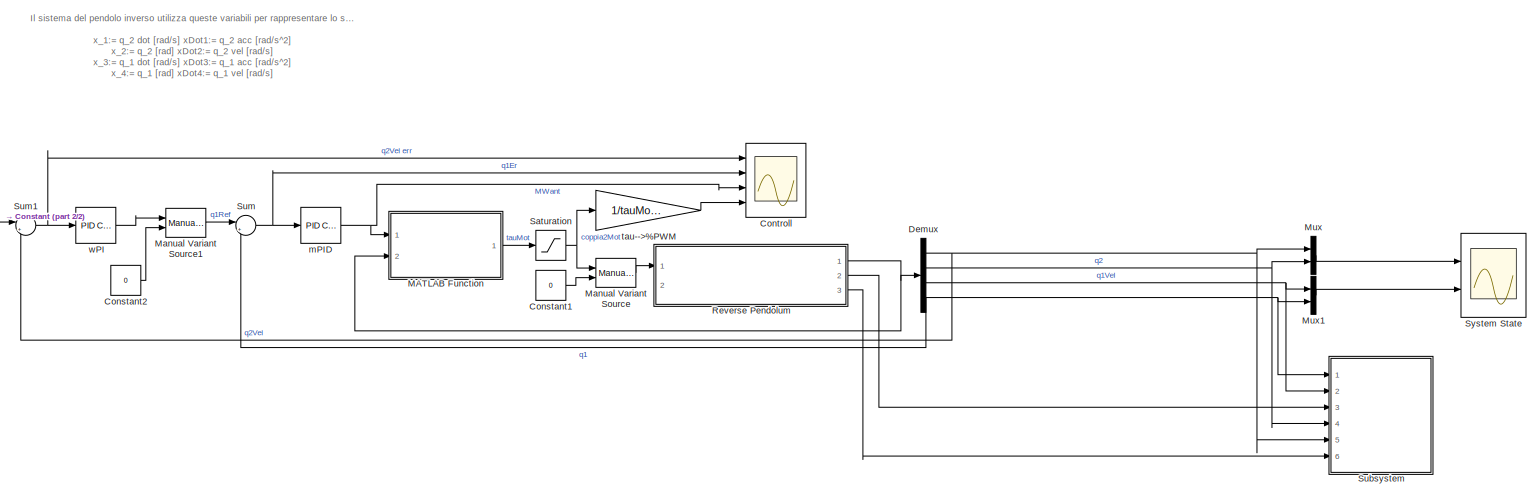
[diagram: root canvas - part 1/2, most of the canvas]
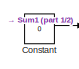
[diagram: root canvas - part 2/2, middle left region]
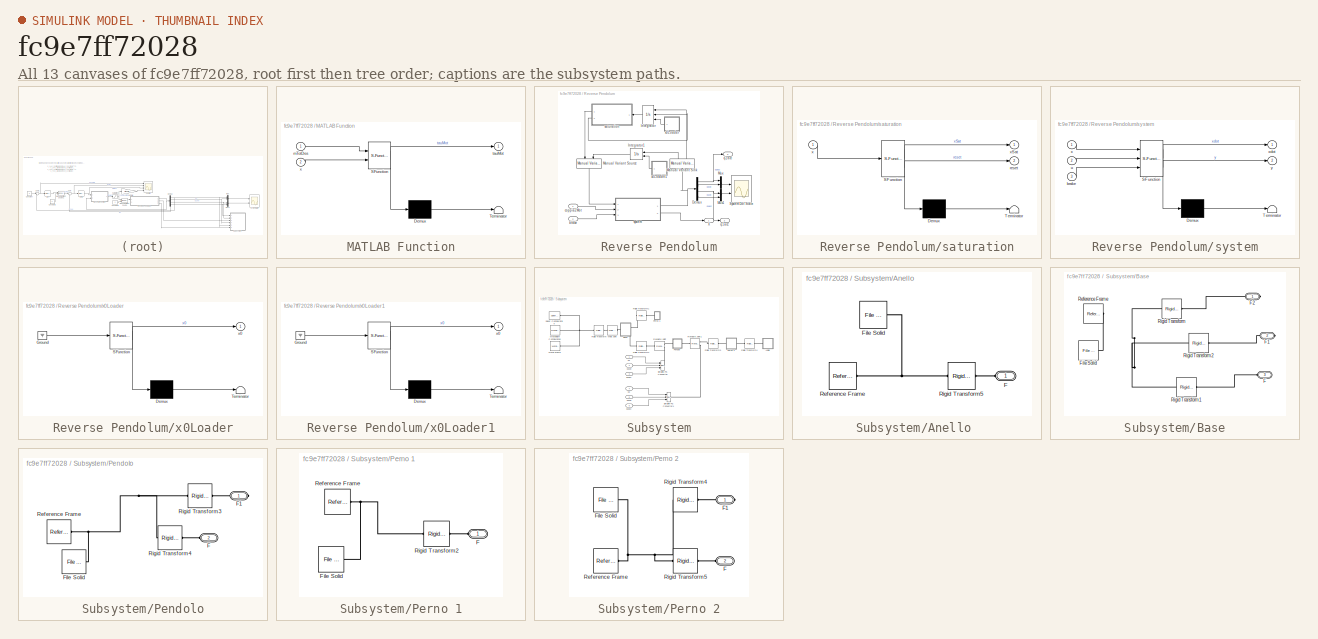
[diagram: thumbnail index - all 13 canvases of the model, root first then tree order]
MODEL slx_fc9e7ff72028
KIND model
CONFIG AbsTol = auto
CONFIG EnableMultiTasking = off
CONFIG FixedStep = 0.0001
CONFIG InitFcn = simulationVar
CONFIG MaxStep = auto
CONFIG MinStep = auto
CONFIG RelTol = 1e-4
CONFIG SampleTimeConstraint = Unconstrained
CONFIG Solver = VariableStepAuto
CONFIG SolverName = VariableStepAuto
CONFIG StartTime = 0.0
CONFIG StopTime = 60
BLOCK [Constant] Constant
  Value = 0
BLOCK [Constant] Constant1
  Value = 0
BLOCK [Constant] Constant2
  Value = 0
BLOCK [Scope] Controll
  Floating = off
  NumInputPorts = 4
  Ports = [4]
  ScopeSpecificationString = Simulink.scopes.TimeScopeBlockCfg('CurrentConfiguration', extmgr.ConfigurationSet(extmgr.Configuration('Core','General UI',true),extmgr.Configuration('Core','Source UI',true),extmgr.Configuration('Sources','WiredSimulink',true,'DataLoggingVariableName','ScopeData1'),extmgr.Configuration('Visuals','Time Domain',true,'SerializedDisplays',{struct('MinYLimReal','-571.95613','MaxYLimReal','265.83464','...<+3625ch>
BLOCK [Demux] Demux
  DisplayOption = bar
  Ports = [1, 4]
BLOCK [SubSystem] MATLAB Function
  ErrorFcn = Stateflow.Translate.translate
  PermitHierarchicalResolution = ExplicitOnly
  Ports = [2, 1]
  RequestExecContextInheritance = off
  SFBlockType = MATLAB Function
  TreatAsAtomicUnit = on
BLOCK [Demux] MATLAB Function/ Demux 
  Outputs = 1
  Ports = [1, 1]
BLOCK [S-Function] MATLAB Function/ SFunction 
  EnableBusSupport = on
  FunctionName = sf_sfun
  PortCounts = [2 2]
  Ports = [2, 2]
  SFcnIsStateOwnerBlock = off
  SFunctionDeploymentMode = off
  Tag = Stateflow S-Function 5
BLOCK [Terminator] MATLAB Function/ Terminator 
BLOCK [Inport] MATLAB Function/mTotDes
  IconDisplay = Port number
BLOCK [Outport] MATLAB Function/tauMot
  IconDisplay = Port number
  VectorParamsAs1DForOutWhenUnconnected = off
BLOCK [Inport] MATLAB Function/x
  IconDisplay = Port number
  Port = 2
BLOCK [Reference] Manual Variant Source  REF=simulink/Signal
Routing/Manual
Variant Source
  Ports = [2, 1]
  SourceBlock = simulink/Signal\nRouting/Manual\nVariant Source
  SourceProductBaseCode = SL
  SourceProductName = Simulink
  SourceType = ManualVariantSource
BLOCK [Reference] Manual Variant Source1  REF=simulink/Signal
Routing/Manual
Variant Source
  Ports = [2, 1]
  SourceBlock = simulink/Signal\nRouting/Manual\nVariant Source
  SourceProductBaseCode = SL
  SourceProductName = Simulink
  SourceType = ManualVariantSource
BLOCK [Mux] Mux
  DisplayOption = bar
  Inputs = 2
  Ports = [2, 1]
BLOCK [Mux] Mux1
  DisplayOption = bar
  Inputs = 2
  Ports = [2, 1]
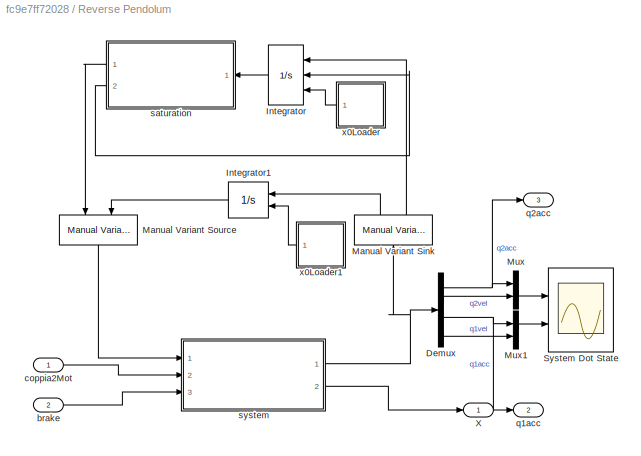
BLOCK [SubSystem] Reverse Pendolum
  Ports = [2, 3]
  RequestExecContextInheritance = off
BLOCK [Demux] Reverse Pendolum/Demux
  DisplayOption = bar
  Ports = [1, 4]
BLOCK [Integrator] Reverse Pendolum/Integrator
  ExternalReset = rising
  InitialCondition = [0,0.1,0]
  InitialConditionSource = external
  Ports = [3, 1]
BLOCK [Integrator] Reverse Pendolum/Integrator1
  InitialConditionSource = external
  Ports = [2, 1]
BLOCK [Reference] Reverse Pendolum/Manual Variant Sink  REF=simulink/Signal
Routing/Manual
Variant Sink
  Ports = [1, 2]
  SourceBlock = simulink/Signal\nRouting/Manual\nVariant Sink
  SourceProductBaseCode = SL
  SourceProductName = Simulink
  SourceType = ManualVariantSink
BLOCK [Reference] Reverse Pendolum/Manual Variant Source  REF=simulink/Signal
Routing/Manual
Variant Source
  Ports = [2, 1]
  SourceBlock = simulink/Signal\nRouting/Manual\nVariant Source
  SourceProductBaseCode = SL
  SourceProductName = Simulink
  SourceType = ManualVariantSource
BLOCK [Mux] Reverse Pendolum/Mux
  DisplayOption = bar
  Inputs = 2
  Ports = [2, 1]
BLOCK [Mux] Reverse Pendolum/Mux1
  DisplayOption = bar
  Inputs = 2
  Ports = [2, 1]
BLOCK [Scope] Reverse Pendolum/System Dot State
  Floating = off
  NumInputPorts = 2
  Ports = [2]
  ScopeSpecificationString = Simulink.scopes.TimeScopeBlockCfg('CurrentConfiguration', extmgr.ConfigurationSet(extmgr.Configuration('Core','General UI',true),extmgr.Configuration('Core','Source UI',true),extmgr.Configuration('Sources','WiredSimulink',true,'DataLoggingVariableName','ScopeData2'),extmgr.Configuration('Visuals','Time Domain',true,'SerializedDisplays',{struct('MinYLimReal','-12277.57606','MaxYLimReal','11488.9348...<+2165ch>
BLOCK [Outport] Reverse Pendolum/X
  IconDisplay = Port number
  VectorParamsAs1DForOutWhenUnconnected = off
BLOCK [Inport] Reverse Pendolum/brake
  IconDisplay = Port number
  Port = 2
BLOCK [Inport] Reverse Pendolum/coppia2Mot
  IconDisplay = Port number
BLOCK [Outport] Reverse Pendolum/q1acc
  IconDisplay = Port number
  Port = 2
  VectorParamsAs1DForOutWhenUnconnected = off
BLOCK [Outport] Reverse Pendolum/q2acc
  IconDisplay = Port number
  Port = 3
  VectorParamsAs1DForOutWhenUnconnected = off
BLOCK [SubSystem] Reverse Pendolum/saturation
  ErrorFcn = Stateflow.Translate.translate
  PermitHierarchicalResolution = ExplicitOnly
  Ports = [1, 2]
  RequestExecContextInheritance = off
  SFBlockType = MATLAB Function
  TreatAsAtomicUnit = on
BLOCK [Demux] Reverse Pendolum/saturation/ Demux 
  Outputs = 1
  Ports = [1, 1]
BLOCK [S-Function] Reverse Pendolum/saturation/ SFunction 
  EnableBusSupport = on
  FunctionName = sf_sfun
  PortCounts = [1 3]
  Ports = [1, 3]
  SFcnIsStateOwnerBlock = off
  SFunctionDeploymentMode = off
  Tag = Stateflow S-Function 2
BLOCK [Terminator] Reverse Pendolum/saturation/ Terminator 
BLOCK [Outport] Reverse Pendolum/saturation/reset
  IconDisplay = Port number
  Port = 2
  VectorParamsAs1DForOutWhenUnconnected = off
BLOCK [Inport] Reverse Pendolum/saturation/x
  IconDisplay = Port number
BLOCK [Outport] Reverse Pendolum/saturation/xSat
  IconDisplay = Port number
  VectorParamsAs1DForOutWhenUnconnected = off
BLOCK [SubSystem] Reverse Pendolum/system
  ErrorFcn = Stateflow.Translate.translate
  PermitHierarchicalResolution = ExplicitOnly
  Ports = [3, 2]
  RequestExecContextInheritance = off
  SFBlockType = MATLAB Function
  TreatAsAtomicUnit = on
BLOCK [Demux] Reverse Pendolum/system/ Demux 
  Outputs = 1
  Ports = [1, 1]
BLOCK [S-Function] Reverse Pendolum/system/ SFunction 
  EnableBusSupport = on
  FunctionName = sf_sfun
  PortCounts = [3 3]
  Ports = [3, 3]
  SFcnIsStateOwnerBlock = off
  SFunctionDeploymentMode = off
  Tag = Stateflow S-Function 1
BLOCK [Terminator] Reverse Pendolum/system/ Terminator 
BLOCK [Inport] Reverse Pendolum/system/brake
  IconDisplay = Port number
  Port = 3
BLOCK [Inport] Reverse Pendolum/system/u
  IconDisplay = Port number
  Port = 2
BLOCK [Inport] Reverse Pendolum/system/x
  IconDisplay = Port number
BLOCK [Outport] Reverse Pendolum/system/xdot
  IconDisplay = Port number
  VectorParamsAs1DForOutWhenUnconnected = off
BLOCK [Outport] Reverse Pendolum/system/y
  IconDisplay = Port number
  Port = 2
  VectorParamsAs1DForOutWhenUnconnected = off
BLOCK [SubSystem] Reverse Pendolum/x0Loader
  ErrorFcn = Stateflow.Translate.translate
  PermitHierarchicalResolution = ExplicitOnly
  Ports = [0, 1]
  RequestExecContextInheritance = off
  SFBlockType = MATLAB Function
  TreatAsAtomicUnit = on
BLOCK [Demux] Reverse Pendolum/x0Loader/ Demux 
  Outputs = 1
  Ports = [1, 1]
BLOCK [Ground] Reverse Pendolum/x0Loader/ Ground 
BLOCK [S-Function] Reverse Pendolum/x0Loader/ SFunction 
  EnableBusSupport = on
  FunctionName = sf_sfun
  PortCounts = [1 2]
  Ports = [1, 2]
  SFcnIsStateOwnerBlock = off
  SFunctionDeploymentMode = off
  Tag = Stateflow S-Function 3
BLOCK [Terminator] Reverse Pendolum/x0Loader/ Terminator 
BLOCK [Outport] Reverse Pendolum/x0Loader/x0
  IconDisplay = Port number
  VectorParamsAs1DForOutWhenUnconnected = off
BLOCK [SubSystem] Reverse Pendolum/x0Loader1
  ErrorFcn = Stateflow.Translate.translate
  PermitHierarchicalResolution = ExplicitOnly
  Ports = [0, 1]
  RequestExecContextInheritance = off
  SFBlockType = MATLAB Function
  TreatAsAtomicUnit = on
BLOCK [Demux] Reverse Pendolum/x0Loader1/ Demux 
  Outputs = 1
  Ports = [1, 1]
BLOCK [Ground] Reverse Pendolum/x0Loader1/ Ground 
BLOCK [S-Function] Reverse Pendolum/x0Loader1/ SFunction 
  EnableBusSupport = on
  FunctionName = sf_sfun
  PortCounts = [1 2]
  Ports = [1, 2]
  SFcnIsStateOwnerBlock = off
  SFunctionDeploymentMode = off
  Tag = Stateflow S-Function 4
BLOCK [Terminator] Reverse Pendolum/x0Loader1/ Terminator 
BLOCK [Outport] Reverse Pendolum/x0Loader1/x0
  IconDisplay = Port number
  VectorParamsAs1DForOutWhenUnconnected = off
BLOCK [Saturate] Saturation
  InputPortMap = u0
  LowerLimit = -tauMotMax
  Ports = [1, 1]
  UpperLimit = tauMotMax
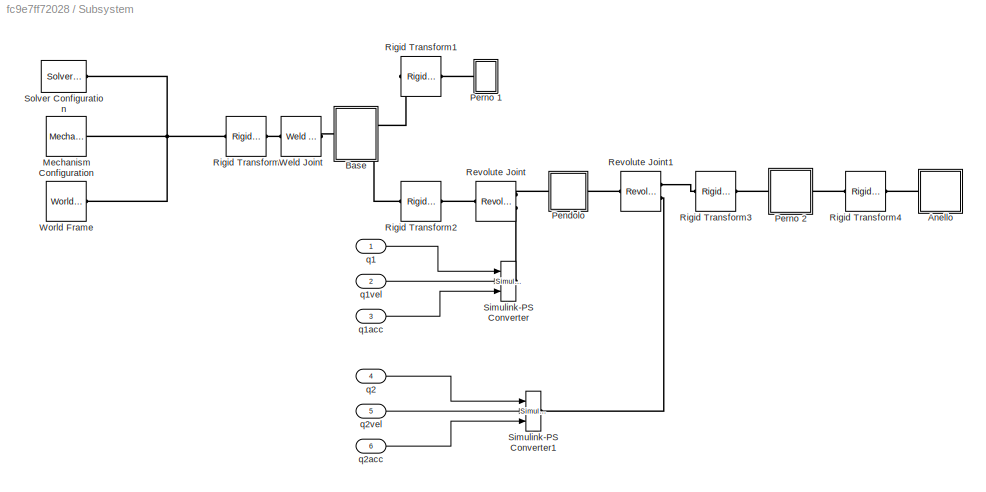
BLOCK [SubSystem] Subsystem
  Ports = [6]
  RequestExecContextInheritance = off
BLOCK [SubSystem] Subsystem/Anello 
  Ports = [0, 0, 0, 0, 0, 1]
  RequestExecContextInheritance = off
BLOCK [PMIOPort] Subsystem/Anello /F
  Side = Left
BLOCK [Reference] Subsystem/Anello /File Solid  REF=sm_lib/Body Elements/File Solid
  Ports = [0, 0, 0, 0, 0, 0, 1]
  SourceBlock = sm_lib/Body Elements/File Solid
  SourceProductBaseCode = MS
  SourceProductName = Simscape Multibody
  SourceType = File Solid
BLOCK [Reference] Subsystem/Anello /Reference Frame  REF=sm_lib/Frames and
Transforms/Reference
Frame
  Ports = [0, 0, 0, 0, 0, 0, 1]
  SourceBlock = sm_lib/Frames and\nTransforms/Reference\nFrame
  SourceProductBaseCode = MS
  SourceProductName = Simscape Multibody
  SourceType = Reference\nFrame
BLOCK [Reference] Subsystem/Anello /Rigid Transform5  REF=sm_lib/Frames and
Transforms/Rigid
Transform
  Ports = [0, 0, 0, 0, 0, 1, 1]
  SourceBlock = sm_lib/Frames and\nTransforms/Rigid\nTransform
  SourceProductBaseCode = MS
  SourceProductName = Simscape Multibody
  SourceType = Rigid\nTransform
BLOCK [SubSystem] Subsystem/Base
  Ports = [0, 0, 0, 0, 0, 1, 2]
  RequestExecContextInheritance = off
BLOCK [PMIOPort] Subsystem/Base/F
  Port = 3
  Side = Left
BLOCK [PMIOPort] Subsystem/Base/F1
  Port = 2
  Side = Right
BLOCK [PMIOPort] Subsystem/Base/F2
  Side = Right
BLOCK [Reference] Subsystem/Base/File Solid  REF=sm_lib/Body Elements/File Solid
  Ports = [0, 0, 0, 0, 0, 0, 1]
  SourceBlock = sm_lib/Body Elements/File Solid
  SourceProductBaseCode = MS
  SourceProductName = Simscape Multibody
  SourceType = File Solid
BLOCK [Reference] Subsystem/Base/Reference Frame  REF=sm_lib/Frames and
Transforms/Reference
Frame
  Ports = [0, 0, 0, 0, 0, 0, 1]
  SourceBlock = sm_lib/Frames and\nTransforms/Reference\nFrame
  SourceProductBaseCode = MS
  SourceProductName = Simscape Multibody
  SourceType = Reference\nFrame
BLOCK [Reference] Subsystem/Base/Rigid Transform  REF=sm_lib/Frames and
Transforms/Rigid
Transform
  Ports = [0, 0, 0, 0, 0, 1, 1]
  SourceBlock = sm_lib/Frames and\nTransforms/Rigid\nTransform
  SourceProductBaseCode = MS
  SourceProductName = Simscape Multibody
  SourceType = Rigid\nTransform
BLOCK [Reference] Subsystem/Base/Rigid Transform1  REF=sm_lib/Frames and
Transforms/Rigid
Transform
  Ports = [0, 0, 0, 0, 0, 1, 1]
  SourceBlock = sm_lib/Frames and\nTransforms/Rigid\nTransform
  SourceProductBaseCode = MS
  SourceProductName = Simscape Multibody
  SourceType = Rigid\nTransform
BLOCK [Reference] Subsystem/Base/Rigid Transform2  REF=sm_lib/Frames and
Transforms/Rigid
Transform
  Ports = [0, 0, 0, 0, 0, 1, 1]
  SourceBlock = sm_lib/Frames and\nTransforms/Rigid\nTransform
  SourceProductBaseCode = MS
  SourceProductName = Simscape Multibody
  SourceType = Rigid\nTransform
BLOCK [Reference] Subsystem/Mechanism Configuration  REF=sm_lib/Utilities/Mechanism
Configuration
  Ports = [0, 0, 0, 0, 0, 0, 1]
  SourceBlock = sm_lib/Utilities/Mechanism\nConfiguration
  SourceProductBaseCode = MS
  SourceProductName = Simscape Multibody
  SourceType = Mechanism\nConfiguration
BLOCK [SubSystem] Subsystem/Pendolo
  Ports = [0, 0, 0, 0, 0, 1, 1]
  RequestExecContextInheritance = off
BLOCK [PMIOPort] Subsystem/Pendolo/F 
  Port = 2
  Side = Left
BLOCK [PMIOPort] Subsystem/Pendolo/F1
  Side = Right
BLOCK [Reference] Subsystem/Pendolo/File Solid  REF=sm_lib/Body Elements/File Solid
  Ports = [0, 0, 0, 0, 0, 0, 1]
  SourceBlock = sm_lib/Body Elements/File Solid
  SourceProductBaseCode = MS
  SourceProductName = Simscape Multibody
  SourceType = File Solid
BLOCK [Reference] Subsystem/Pendolo/Reference Frame  REF=sm_lib/Frames and
Transforms/Reference
Frame
  Ports = [0, 0, 0, 0, 0, 0, 1]
  SourceBlock = sm_lib/Frames and\nTransforms/Reference\nFrame
  SourceProductBaseCode = MS
  SourceProductName = Simscape Multibody
  SourceType = Reference\nFrame
BLOCK [Reference] Subsystem/Pendolo/Rigid Transform3  REF=sm_lib/Frames and
Transforms/Rigid
Transform
  Ports = [0, 0, 0, 0, 0, 1, 1]
  SourceBlock = sm_lib/Frames and\nTransforms/Rigid\nTransform
  SourceProductBaseCode = MS
  SourceProductName = Simscape Multibody
  SourceType = Rigid\nTransform
BLOCK [Reference] Subsystem/Pendolo/Rigid Transform4  REF=sm_lib/Frames and
Transforms/Rigid
Transform
  Ports = [0, 0, 0, 0, 0, 1, 1]
  SourceBlock = sm_lib/Frames and\nTransforms/Rigid\nTransform
  SourceProductBaseCode = MS
  SourceProductName = Simscape Multibody
  SourceType = Rigid\nTransform
BLOCK [SubSystem] Subsystem/Perno 1
  Ports = [0, 0, 0, 0, 0, 1]
  RequestExecContextInheritance = off
BLOCK [PMIOPort] Subsystem/Perno 1/F
  Side = Left
BLOCK [Reference] Subsystem/Perno 1/File Solid  REF=sm_lib/Body Elements/File Solid
  Ports = [0, 0, 0, 0, 0, 0, 1]
  SourceBlock = sm_lib/Body Elements/File Solid
  SourceProductBaseCode = MS
  SourceProductName = Simscape Multibody
  SourceType = File Solid
BLOCK [Reference] Subsystem/Perno 1/Reference Frame  REF=sm_lib/Frames and
Transforms/Reference
Frame
  Ports = [0, 0, 0, 0, 0, 0, 1]
  SourceBlock = sm_lib/Frames and\nTransforms/Reference\nFrame
  SourceProductBaseCode = MS
  SourceProductName = Simscape Multibody
  SourceType = Reference\nFrame
BLOCK [Reference] Subsystem/Perno 1/Rigid Transform2  REF=sm_lib/Frames and
Transforms/Rigid
Transform
  Ports = [0, 0, 0, 0, 0, 1, 1]
  SourceBlock = sm_lib/Frames and\nTransforms/Rigid\nTransform
  SourceProductBaseCode = MS
  SourceProductName = Simscape Multibody
  SourceType = Rigid\nTransform
BLOCK [SubSystem] Subsystem/Perno 2
  Ports = [0, 0, 0, 0, 0, 1, 1]
  RequestExecContextInheritance = off
BLOCK [PMIOPort] Subsystem/Perno 2/F
  Port = 2
  Side = Left
BLOCK [PMIOPort] Subsystem/Perno 2/F1
  Side = Right
BLOCK [Reference] Subsystem/Perno 2/File Solid  REF=sm_lib/Body Elements/File Solid
  Ports = [0, 0, 0, 0, 0, 0, 1]
  SourceBlock = sm_lib/Body Elements/File Solid
  SourceProductBaseCode = MS
  SourceProductName = Simscape Multibody
  SourceType = File Solid
BLOCK [Reference] Subsystem/Perno 2/Reference Frame  REF=sm_lib/Frames and
Transforms/Reference
Frame
  Ports = [0, 0, 0, 0, 0, 0, 1]
  SourceBlock = sm_lib/Frames and\nTransforms/Reference\nFrame
  SourceProductBaseCode = MS
  SourceProductName = Simscape Multibody
  SourceType = Reference\nFrame
BLOCK [Reference] Subsystem/Perno 2/Rigid Transform4  REF=sm_lib/Frames and
Transforms/Rigid
Transform
  Ports = [0, 0, 0, 0, 0, 1, 1]
  SourceBlock = sm_lib/Frames and\nTransforms/Rigid\nTransform
  SourceProductBaseCode = MS
  SourceProductName = Simscape Multibody
  SourceType = Rigid\nTransform
BLOCK [Reference] Subsystem/Perno 2/Rigid Transform5  REF=sm_lib/Frames and
Transforms/Rigid
Transform
  Ports = [0, 0, 0, 0, 0, 1, 1]
  SourceBlock = sm_lib/Frames and\nTransforms/Rigid\nTransform
  SourceProductBaseCode = MS
  SourceProductName = Simscape Multibody
  SourceType = Rigid\nTransform
BLOCK [Reference] Subsystem/Revolute Joint  REF=sm_lib/Joints/Revolute Joint
  Ports = [0, 0, 0, 0, 0, 2, 1]
  SourceBlock = sm_lib/Joints/Revolute Joint
  SourceProductBaseCode = MS
  SourceProductName = Simscape Multibody
  SourceType = Revolute Joint
BLOCK [Reference] Subsystem/Revolute Joint1  REF=sm_lib/Joints/Revolute Joint
  Ports = [0, 0, 0, 0, 0, 2, 1]
  SourceBlock = sm_lib/Joints/Revolute Joint
  SourceProductBaseCode = MS
  SourceProductName = Simscape Multibody
  SourceType = Revolute Joint
BLOCK [Reference] Subsystem/Rigid Transform  REF=sm_lib/Frames and
Transforms/Rigid
Transform
  Ports = [0, 0, 0, 0, 0, 1, 1]
  SourceBlock = sm_lib/Frames and\nTransforms/Rigid\nTransform
  SourceProductBaseCode = MS
  SourceProductName = Simscape Multibody
  SourceType = Rigid\nTransform
BLOCK [Reference] Subsystem/Rigid Transform1  REF=sm_lib/Frames and
Transforms/Rigid
Transform
  Ports = [0, 0, 0, 0, 0, 1, 1]
  SourceBlock = sm_lib/Frames and\nTransforms/Rigid\nTransform
  SourceProductBaseCode = MS
  SourceProductName = Simscape Multibody
  SourceType = Rigid\nTransform
BLOCK [Reference] Subsystem/Rigid Transform2  REF=sm_lib/Frames and
Transforms/Rigid
Transform
  Ports = [0, 0, 0, 0, 0, 1, 1]
  SourceBlock = sm_lib/Frames and\nTransforms/Rigid\nTransform
  SourceProductBaseCode = MS
  SourceProductName = Simscape Multibody
  SourceType = Rigid\nTransform
BLOCK [Reference] Subsystem/Rigid Transform3  REF=sm_lib/Frames and
Transforms/Rigid
Transform
  Ports = [0, 0, 0, 0, 0, 1, 1]
  SourceBlock = sm_lib/Frames and\nTransforms/Rigid\nTransform
  SourceProductBaseCode = MS
  SourceProductName = Simscape Multibody
  SourceType = Rigid\nTransform
BLOCK [Reference] Subsystem/Rigid Transform4  REF=sm_lib/Frames and
Transforms/Rigid
Transform
  Ports = [0, 0, 0, 0, 0, 1, 1]
  SourceBlock = sm_lib/Frames and\nTransforms/Rigid\nTransform
  SourceProductBaseCode = MS
  SourceProductName = Simscape Multibody
  SourceType = Rigid\nTransform
BLOCK [Reference] Subsystem/Simulink-PS Converter  REF=nesl_utility/Simulink-PS
Converter
  Ports = [3, 0, 0, 0, 0, 0, 1]
  SourceBlock = nesl_utility/Simulink-PS\nConverter
  SourceProductBaseCode = SS
  SourceProductName = Simscape
  SourceType = Simulink-PS\nConverter
BLOCK [Reference] Subsystem/Simulink-PS Converter1  REF=nesl_utility/Simulink-PS
Converter
  Ports = [3, 0, 0, 0, 0, 0, 1]
  SourceBlock = nesl_utility/Simulink-PS\nConverter
  SourceProductBaseCode = SS
  SourceProductName = Simscape
  SourceType = Simulink-PS\nConverter
BLOCK [Reference] Subsystem/Solver Configuration  REF=nesl_utility/Solver
Configuration
  Ports = [0, 0, 0, 0, 0, 0, 1]
  SourceBlock = nesl_utility/Solver\nConfiguration
  SourceProductBaseCode = SS
  SourceProductName = Simscape
  SourceType = Solver\nConfiguration
BLOCK [Reference] Subsystem/Weld Joint  REF=sm_lib/Joints/Weld Joint
  Ports = [0, 0, 0, 0, 0, 1, 1]
  SourceBlock = sm_lib/Joints/Weld Joint
  SourceProductBaseCode = MS
  SourceProductName = Simscape Multibody
  SourceType = Weld Joint
BLOCK [Reference] Subsystem/World Frame  REF=sm_lib/Frames and
Transforms/World Frame
  Ports = [0, 0, 0, 0, 0, 0, 1]
  SourceBlock = sm_lib/Frames and\nTransforms/World Frame
  SourceProductBaseCode = MS
  SourceProductName = Simscape Multibody
  SourceType = World Frame
BLOCK [Inport] Subsystem/q1
  IconDisplay = Port number
BLOCK [Inport] Subsystem/q1acc
  IconDisplay = Port number
  Port = 3
BLOCK [Inport] Subsystem/q1vel
  IconDisplay = Port number
  Port = 2
BLOCK [Inport] Subsystem/q2
  IconDisplay = Port number
  Port = 4
BLOCK [Inport] Subsystem/q2acc
  IconDisplay = Port number
  Port = 6
BLOCK [Inport] Subsystem/q2vel
  IconDisplay = Port number
  Port = 5
BLOCK [Sum] Sum
  IconShape = round
  InputSameDT = off
  Inputs = |+-
  OutDataTypeStr = Inherit: Inherit via internal rule
  Ports = [2, 1]
  SaturateOnIntegerOverflow = off
BLOCK [Sum] Sum1
  IconShape = round
  InputSameDT = off
  Inputs = |+-
  OutDataTypeStr = Inherit: Inherit via internal rule
  Ports = [2, 1]
  SaturateOnIntegerOverflow = off
BLOCK [Scope] System State
  Floating = off
  NumInputPorts = 2
  Ports = [2]
  ScopeSpecificationString = Simulink.scopes.TimeScopeBlockCfg('CurrentConfiguration', extmgr.ConfigurationSet(extmgr.Configuration('Core','General UI',true),extmgr.Configuration('Core','Source UI',true),extmgr.Configuration('Sources','WiredSimulink',true),extmgr.Configuration('Visuals','Time Domain',true,'SerializedDisplays',{struct('MinYLimReal','-16752.25387','MaxYLimReal','5954.39759','YLabelReal','','MinYLimMag','   0.00...<+2190ch>
BLOCK [Reference] mPID  REF=simulink/Continuous/PID Controller
  Ports = [1, 1]
  SourceBlock = simulink/Continuous/PID Controller
  SourceProductBaseCode = SL
  SourceProductName = Simulink
  SourceType = PID 1dof
BLOCK [Gain] tau-->%PWM
  Gain = 1/tauMotMax
  OutDataTypeStr = Inherit: Inherit via internal rule
  ParamDataTypeStr = Inherit: Inherit via internal rule
  SaturateOnIntegerOverflow = off
BLOCK [Reference] wPI  REF=simulink/Continuous/PID Controller
  Ports = [1, 1]
  SourceBlock = simulink/Continuous/PID Controller
  SourceProductBaseCode = SL
  SourceProductName = Simulink
  SourceType = PID 1dof
ANNOTATION (root): Il sistema del pendolo inverso utilizza queste variabili per rappresentare lo stato del sistema: x_1:= q_2 dot [rad/s] xDot1:= q_2 acc [rad/s^2] x_2:= q_2 [rad] xDot2:= q_2 vel [rad/s] x_3:= q_1 dot [rad/s] xDot3:= q_1 acc [rad/s^2] x_4:= q_1 [rad] xDot4:= q_1 vel [rad/s] Dentro il file "simulationVar.m" è possibile impostare i valori numerici delle costanti che danno vita alla simulazione
LINE Constant1:1 -> Manual Variant Source:2
LINE Constant2:1 -> Manual Variant Source1:2
LINE Constant:1 -> Sum1:1
NET Demux:1 -> Mux:1, Subsystem:5, Sum1:2
NET Demux:2 -> Mux:2, Subsystem:4
NET Demux:3 -> Mux1:1, Subsystem:2
NET Demux:4 -> Mux1:2, Subsystem:1, Sum:2
LINE MATLAB Function:1 -> Saturation:1
LINE Manual Variant Source1:1 -> Sum:1
LINE Manual Variant Source:1 -> Reverse Pendolum:1
LINE Mux1:1 -> System State:2
LINE Mux:1 -> System State:1
NET Reverse Pendolum/Demux:1 -> Reverse Pendolum/Mux:1, Reverse Pendolum/q2acc:1
LINE Reverse Pendolum/Demux:2 -> Reverse Pendolum/Mux:2
NET Reverse Pendolum/Demux:3 -> Reverse Pendolum/Mux1:1, Reverse Pendolum/q1acc:1
LINE Reverse Pendolum/Demux:4 -> Reverse Pendolum/Mux1:2
LINE Reverse Pendolum/Integrator1:1 -> Reverse Pendolum/Manual Variant Source:2
LINE Reverse Pendolum/Integrator:1 -> Reverse Pendolum/saturation:1
LINE Reverse Pendolum/Manual Variant Sink:1 -> Reverse Pendolum/Integrator1:1
LINE Reverse Pendolum/Manual Variant Sink:2 -> Reverse Pendolum/Integrator:1
LINE Reverse Pendolum/Manual Variant Source:1 -> Reverse Pendolum/system:1
LINE Reverse Pendolum/Mux1:1 -> Reverse Pendolum/System Dot State:2
LINE Reverse Pendolum/Mux:1 -> Reverse Pendolum/System Dot State:1
LINE Reverse Pendolum/brake:1 -> Reverse Pendolum/system:3
LINE Reverse Pendolum/coppia2Mot:1 -> Reverse Pendolum/system:2
LINE Reverse Pendolum/saturation:1 -> Reverse Pendolum/Manual Variant Source:1
LINE Reverse Pendolum/saturation:2 -> Reverse Pendolum/Integrator:2
NET Reverse Pendolum/system:1 -> Reverse Pendolum/Demux:1, Reverse Pendolum/Manual Variant Sink:1
LINE Reverse Pendolum/system:2 -> Reverse Pendolum/X:1
LINE Reverse Pendolum/x0Loader1:1 -> Reverse Pendolum/Integrator1:2
LINE Reverse Pendolum/x0Loader:1 -> Reverse Pendolum/Integrator:3
NET Reverse Pendolum:1 -> Demux:1, MATLAB Function:2
LINE Reverse Pendolum:2 -> Subsystem:3
LINE Reverse Pendolum:3 -> Subsystem:6
NET Saturation:1 -> Manual Variant Source:1, tau-->%PWM:1
LINE Subsystem/q1:1 -> Subsystem/Simulink-PS Converter:1
LINE Subsystem/q1acc:1 -> Subsystem/Simulink-PS Converter:3
LINE Subsystem/q1vel:1 -> Subsystem/Simulink-PS Converter:2
LINE Subsystem/q2:1 -> Subsystem/Simulink-PS Converter1:1
LINE Subsystem/q2acc:1 -> Subsystem/Simulink-PS Converter1:3
LINE Subsystem/q2vel:1 -> Subsystem/Simulink-PS Converter1:2
NET Sum1:1 -> Controll:1, wPI:1
NET Sum:1 -> Controll:2, mPID:1
NET mPID:1 -> Controll:3, MATLAB Function:1
LINE tau-->%PWM:1 -> Controll:4
LINE wPI:1 -> Manual Variant Source1:1
PLINE Subsystem/Anello /F:RConn1 -- Subsystem/Anello /Rigid Transform5:RConn1
PNET net1: Subsystem/Anello /File Solid:RConn1 -- Subsystem/Anello /Reference Frame:RConn1 -- Subsystem/Anello /Rigid Transform5:LConn1
PLINE Subsystem/Anello :LConn1 -- Subsystem/Rigid Transform4:RConn1
PLINE Subsystem/Base/F1:RConn1 -- Subsystem/Base/Rigid Transform2:RConn1
PLINE Subsystem/Base/F2:RConn1 -- Subsystem/Base/Rigid Transform:RConn1
PLINE Subsystem/Base/F:RConn1 -- Subsystem/Base/Rigid Transform1:RConn1
PNET net2: Subsystem/Base/File Solid:RConn1 -- Subsystem/Base/Reference Frame:RConn1 -- Subsystem/Base/Rigid Transform1:LConn1 -- Subsystem/Base/Rigid Transform2:LConn1 -- Subsystem/Base/Rigid Transform:LConn1
PLINE Subsystem/Base:LConn1 -- Subsystem/Weld Joint:RConn1
PLINE Subsystem/Base:RConn1 -- Subsystem/Rigid Transform1:LConn1
PLINE Subsystem/Base:RConn2 -- Subsystem/Rigid Transform2:LConn1
PNET net3: Subsystem/Mechanism Configuration:RConn1 -- Subsystem/Rigid Transform:LConn1 -- Subsystem/Solver Configuration:RConn1 -- Subsystem/World Frame:RConn1
PLINE Subsystem/Pendolo/F :RConn1 -- Subsystem/Pendolo/Rigid Transform4:RConn1
PLINE Subsystem/Pendolo/F1:RConn1 -- Subsystem/Pendolo/Rigid Transform3:RConn1
PNET net4: Subsystem/Pendolo/File Solid:RConn1 -- Subsystem/Pendolo/Reference Frame:RConn1 -- Subsystem/Pendolo/Rigid Transform3:LConn1 -- Subsystem/Pendolo/Rigid Transform4:LConn1
PLINE Subsystem/Pendolo:LConn1 -- Subsystem/Revolute Joint:LConn1
PLINE Subsystem/Pendolo:RConn1 -- Subsystem/Revolute Joint1:RConn1
PLINE Subsystem/Perno 1/F:RConn1 -- Subsystem/Perno 1/Rigid Transform2:RConn1
PNET net5: Subsystem/Perno 1/File Solid:RConn1 -- Subsystem/Perno 1/Reference Frame:RConn1 -- Subsystem/Perno 1/Rigid Transform2:LConn1
PLINE Subsystem/Perno 1:LConn1 -- Subsystem/Rigid Transform1:RConn1
PLINE Subsystem/Perno 2/F1:RConn1 -- Subsystem/Perno 2/Rigid Transform4:RConn1
PLINE Subsystem/Perno 2/F:RConn1 -- Subsystem/Perno 2/Rigid Transform5:RConn1
PNET net6: Subsystem/Perno 2/File Solid:RConn1 -- Subsystem/Perno 2/Reference Frame:RConn1 -- Subsystem/Perno 2/Rigid Transform4:LConn1 -- Subsystem/Perno 2/Rigid Transform5:LConn1
PLINE Subsystem/Perno 2:LConn1 -- Subsystem/Rigid Transform3:LConn1
PLINE Subsystem/Perno 2:RConn1 -- Subsystem/Rigid Transform4:LConn1
PLINE Subsystem/Revolute Joint1:LConn1 -- Subsystem/Rigid Transform3:RConn1
PLINE Subsystem/Revolute Joint1:LConn2 -- Subsystem/Simulink-PS Converter1:RConn1
PLINE Subsystem/Revolute Joint:LConn2 -- Subsystem/Simulink-PS Converter:RConn1
PLINE Subsystem/Revolute Joint:RConn1 -- Subsystem/Rigid Transform2:RConn1
PLINE Subsystem/Rigid Transform:RConn1 -- Subsystem/Weld Joint:LConn1
note: NET lines group one-source signal fan-out (src -> all destinations, sorted); 1:1 wires keep LINE; PNET lines group multi-terminal physical nets as a canonical sorted terminal list (undirected conserving connections); 2-terminal nets keep the pairwise PLINE form
CHART Reverse Pendolum/system states=1 transitions=1
  STATE_LABEL 'eML_blk_kernel()'
  STATE_LABEL 'SCRIPT:\nfunction [xdot,y] = pendoloNotLinSys(x,u,brake)\n%PENDOLONOTLINSYS Summary of this function goes here\n% xDot1:= q2 acc    [rad/s^2]\n% xDot2:= q2 vel    [rad/s]\n% xDot3:= q1 acc    [rad/s^2]\n% xDot4:= q1 vel    [rad/s]\n\n% x1:= q2 dot    [rad/s]\n% x2:= q2        [rad]\n% x3:= q1 dot    [rad/s]\n% x4:= q1        [rad]\n\n% u:= Coppia motore [g/s^2 * mm]\n% brake:= true change D2 and shutdown u\n\ncod...<+2109ch>'
CHART Reverse Pendolum/saturation states=1 transitions=1
  STATE_LABEL 'eML_blk_kernel()'
  STATE_LABEL 'SCRIPT:\nfunction [xSat,reset]  = phisicReaction(x)\n%PHISICREACTION Summary of this function goes here\n% Funzione che letto lo stato, in caso di urto con la base cambia\n% in maniera realistica lo stato introducendo una saturazione.\n\n% xDot1:= q2 acc    [rad/s^2]\n% xDot2:= q2 vel    [rad/s]\n% xDot3:= q1 acc    [rad/s^2]\n% xDot4:= q1 vel    [rad/s]\n\n% x1:= q2 dot    [rad/s]\n% x2:= q2        [rad]\n% x...<+538ch>'
CHART Reverse Pendolum/x0Loader states=1 transitions=1
  STATE_LABEL 'eML_blk_kernel()'
  STATE_LABEL "SCRIPT:\nfunction x0 = loadX0()\n% xDot1:= q2 acc    [rad/s^2]\n% xDot2:= q2 vel    [rad/s]\n% xDot3:= q1 acc    [rad/s^2]\n% xDot4:= q1 vel    [rad/s]\n\n% x1:= q2 dot    [rad/s]\n% x2:= q2        [rad]\n% x3:= q1 dot    [rad/s]\n% x4:= q1        [rad]\ncoder.extrinsic('evalin', 'assignin')\nx0 = zeros(4,1);          % Needed in order to set variable class correctly\nx0 = evalin('base','x0'); % Read value fro...<+12ch>"
CHART Reverse Pendolum/x0Loader1 states=1 transitions=1
  STATE_LABEL 'eML_blk_kernel()'
  STATE_LABEL "SCRIPT:\nfunction x0 = loadX0()\n% xDot1:= q2 acc    [rad/s^2]\n% xDot2:= q2 vel    [rad/s]\n% xDot3:= q1 acc    [rad/s^2]\n% xDot4:= q1 vel    [rad/s]\n\n% x1:= q2 dot    [rad/s]\n% x2:= q2        [rad]\n% x3:= q1 dot    [rad/s]\n% x4:= q1        [rad]\ncoder.extrinsic('evalin', 'assignin')\nx0 = zeros(4,1);          % Needed in order to set variable class correctly\nx0 = evalin('base','x0'); % Read value fro...<+12ch>"
CHART MATLAB Function states=1 transitions=1
  STATE_LABEL 'eML_blk_kernel()'
  STATE_LABEL "SCRIPT:\nfunction tauMot = Mwant(mTotDes, x)\n% x1:= q2 dot    [rad/s]\n% x2:= q2        [rad]\n% x3:= q1 dot    [rad/s]\n% x4:= q1        [rad]\n% tauMot:= Coppia motore [g/s^2 * mm]\n\ncoder.extrinsic('evalin', 'assignin')\nKmgl = 0;                  % Needed in order to set variable class correctly\nKmgl = evalin('base','Kmgl'); % Read value from workspace\n\nD1 = 0;                  % Needed in order to s...<+1494ch>"
